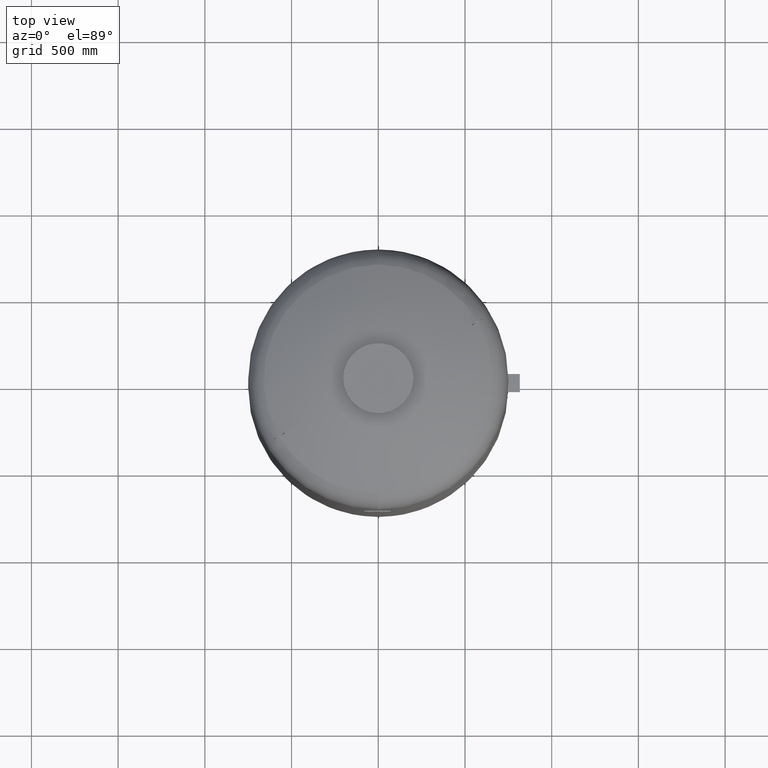
[diagram: clean part render]
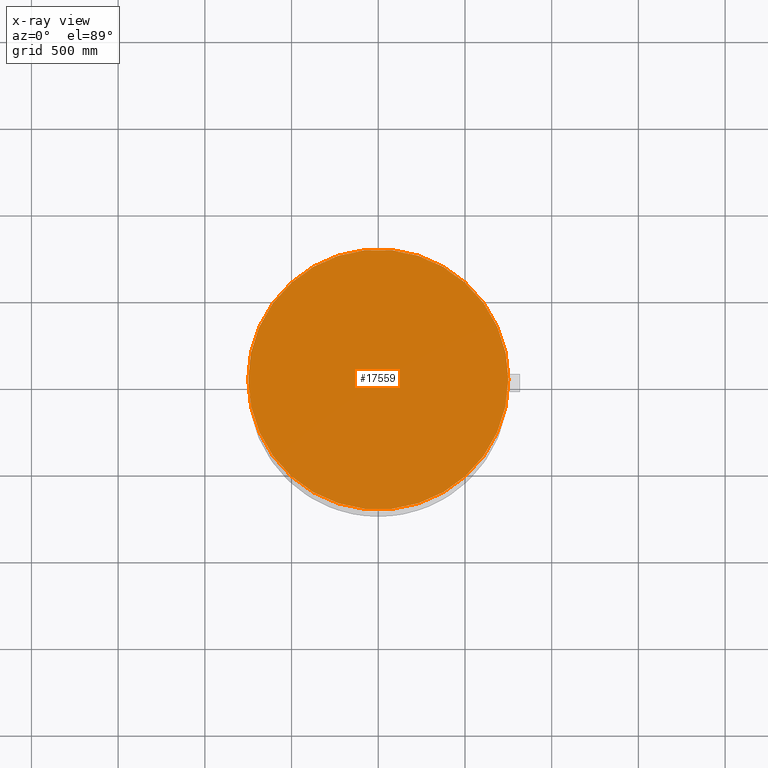
[diagram: x-ray — body ghosted, one internal face saturated and labeled with its STEP entity id]
A machine part, top view, then the same camera in x-ray: the body is ghosted and one INTERNAL B-rep face — a face not visible from any outside direction — is saturated and labeled: STEP entity #17559.
In plain terms, the highlighted planar face has unit normal (0, 0, -1).
Its self-contained STEP definition (entity closure, byte-faithful):
#16818=CARTESIAN_POINT('',(750.0,-6.062002E-014,3180.0));
#16819=VERTEX_POINT('',#16818);
#16828=CARTESIAN_POINT('',(-750.0,3.122546E-014,3180.0));
#16829=VERTEX_POINT('',#16828);
#16830=CARTESIAN_POINT('',(1.631890E-014,-6.062002E-014,3180.0));
#16831=DIRECTION('',(0.0,0.0,-1.0));
#16832=DIRECTION('',(1.0,0.0,0.0));
#16833=AXIS2_PLACEMENT_3D('',#16830,#16831,#16832);
#16834=CIRCLE('',#16833,750.0);
#16835=EDGE_CURVE('',#16829,#16819,#16834,.T.);
#17540=CARTESIAN_POINT('',(1.631890E-014,-6.062002E-014,3180.0));
#17541=DIRECTION('',(0.0,0.0,-1.0));
#17542=DIRECTION('',(1.0,0.0,0.0));
#17543=AXIS2_PLACEMENT_3D('',#17540,#17541,#17542);
#17544=CIRCLE('',#17543,750.0);
#17545=EDGE_CURVE('',#16819,#16829,#17544,.T.);
#17550=CARTESIAN_POINT('',(374.999999999999940,-6.062002E-014,3180.0));
#17551=DIRECTION('',(0.0,0.0,-1.0));
#17552=DIRECTION('',(0.0,-1.0,0.0));
#17553=AXIS2_PLACEMENT_3D('',#17550,#17551,#17552);
#17554=PLANE('',#17553);
#17555=ORIENTED_EDGE('',*,*,#17545,.T.);
#17556=ORIENTED_EDGE('',*,*,#16835,.T.);
#17557=EDGE_LOOP('',(#17555,#17556));
#17558=FACE_OUTER_BOUND('',#17557,.T.);
#17559=ADVANCED_FACE('',(#17558),#17554,.T.);